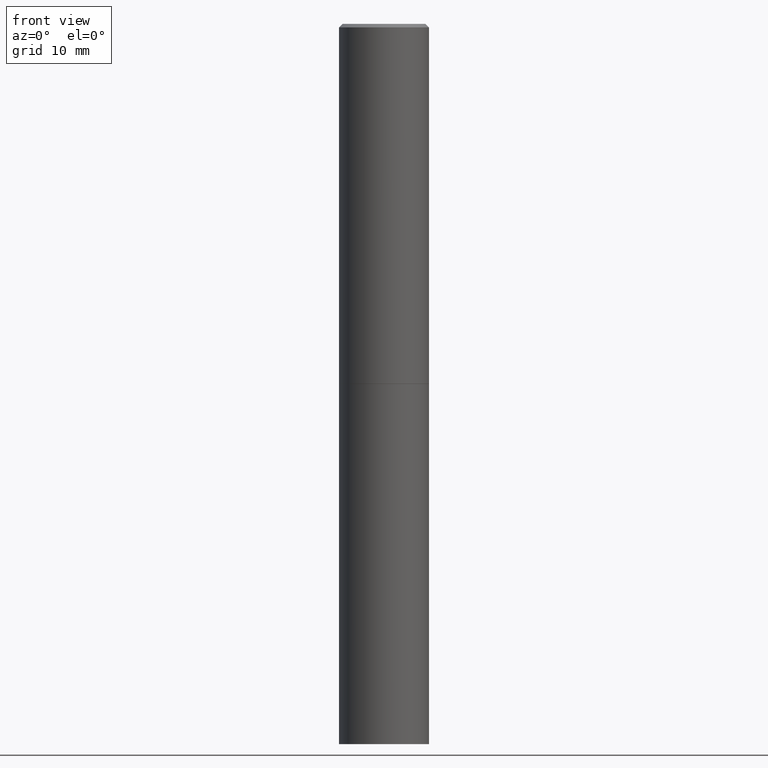
[diagram: clean part render]
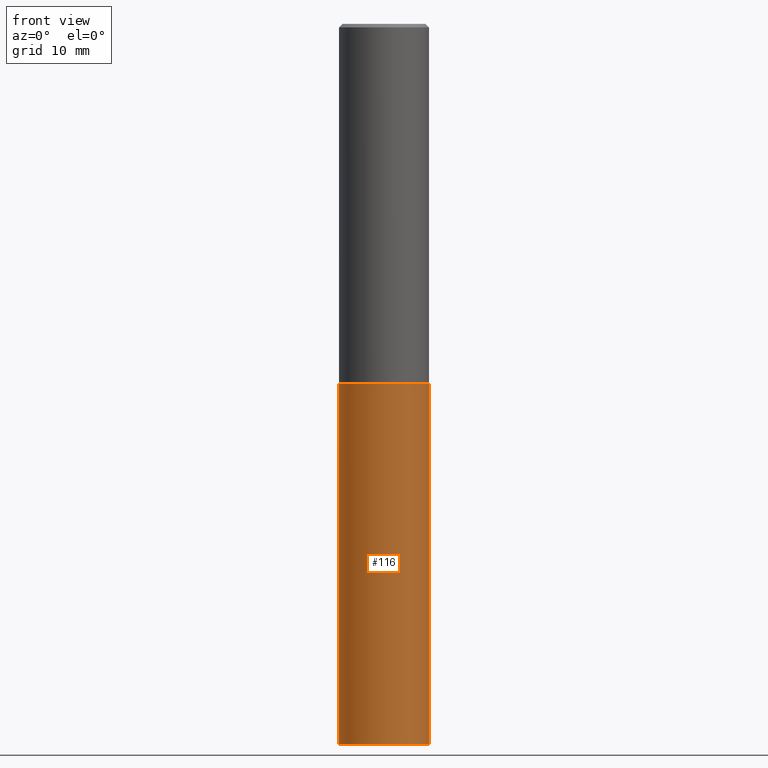
[diagram: same view with one face highlighted and labeled with its STEP entity id]
A machine part, front view. The second image highlights one B-rep face of the part: STEP entity #116.
In plain terms, the highlighted cylindrical surface (partial cylindrical patch) has radius 6.35 mm, axis along (-0, 0, 1).
Its self-contained STEP definition (entity closure, byte-faithful):
#7 = CIRCLE ( 'NONE', #314, 0.2500000000000000000 ) ;
#8 = LINE ( 'NONE', #68, #218 ) ;
#12 = DIRECTION ( 'NONE',  ( -2.445468806185136877E-29, 3.491481338843145188E-15, 1.000000000000000000 ) ) ;
#17 = CARTESIAN_POINT ( 'NONE',  ( 0.2500000000000000000, -1.571166602479415059E-14, -4.000000000000000000 ) ) ;
#18 = ORIENTED_EDGE ( 'NONE', *, *, #231, .F. ) ;
#20 = LINE ( 'NONE', #161, #22 ) ;
#22 = VECTOR ( 'NONE', #12, 39.37007874015748143 ) ;
#30 = CIRCLE ( 'NONE', #159, 0.2500000000000000000 ) ;
#37 = DIRECTION ( 'NONE',  ( 1.000000000000000000, -6.982962677686270655E-15, 0.000000000000000000 ) ) ;
#60 = DIRECTION ( 'NONE',  ( -2.445468806185136597E-29, 3.491481338843145583E-15, 1.000000000000000000 ) ) ;
#68 = CARTESIAN_POINT ( 'NONE',  ( -0.2500000000000000000, 1.776356839400250465E-15, -1.229733772563726445E-29 ) ) ;
#94 = DIRECTION ( 'NONE',  ( -2.445468806185136597E-29, 3.491481338843145583E-15, 1.000000000000000000 ) ) ;
#97 = ORIENTED_EDGE ( 'NONE', *, *, #104, .T. ) ;
#99 = DIRECTION ( 'NONE',  ( 1.000000000000000000, -6.982962677686266711E-15, 0.000000000000000000 ) ) ;
#104 = EDGE_CURVE ( 'NONE', #257, #115, #20, .T. ) ;
#115 = VERTEX_POINT ( 'NONE', #187 ) ;
#116 = ADVANCED_FACE ( 'NONE', ( #313 ), #120, .T. ) ;
#120 = CYLINDRICAL_SURFACE ( 'NONE', #179, 0.2500000000000000000 ) ;
#154 = CARTESIAN_POINT ( 'NONE',  ( 9.781875224740546387E-29, -1.396592535537258233E-14, -4.000000000000000000 ) ) ;
#159 = AXIS2_PLACEMENT_3D ( 'NONE', #154, #358, #37 ) ;
#161 = CARTESIAN_POINT ( 'NONE',  ( 0.2500000000000000000, -1.745740669421566678E-15, 1.219044193948983948E-29 ) ) ;
#169 = EDGE_LOOP ( 'NONE', ( #18, #272, #97, #198 ) ) ;
#175 = EDGE_CURVE ( 'NONE', #217, #257, #30, .T. ) ;
#179 = AXIS2_PLACEMENT_3D ( 'NONE', #264, #60, #346 ) ;
#187 = CARTESIAN_POINT ( 'NONE',  ( 0.2500000000000000000, -8.728703347107857054E-15, -2.000000000000000000 ) ) ;
#198 = ORIENTED_EDGE ( 'NONE', *, *, #215, .F. ) ;
#211 = CARTESIAN_POINT ( 'NONE',  ( -0.2500000000000000000, -8.698087177129185889E-15, -4.000000000000000000 ) ) ;
#215 = EDGE_CURVE ( 'NONE', #301, #115, #7, .T. ) ;
#217 = VERTEX_POINT ( 'NONE', #211 ) ;
#218 = VECTOR ( 'NONE', #297, 39.37007874015748143 ) ;
#231 = EDGE_CURVE ( 'NONE', #217, #301, #8, .T. ) ;
#235 = CARTESIAN_POINT ( 'NONE',  ( 4.890937612370273194E-29, -6.982962677686291165E-15, -2.000000000000000000 ) ) ;
#257 = VERTEX_POINT ( 'NONE', #17 ) ;
#264 = CARTESIAN_POINT ( 'NONE',  ( 0.000000000000000000, 0.000000000000000000, 0.000000000000000000 ) ) ;
#272 = ORIENTED_EDGE ( 'NONE', *, *, #175, .T. ) ;
#294 = CARTESIAN_POINT ( 'NONE',  ( -0.2500000000000000000, -8.698087177129185889E-15, -2.000000000000000000 ) ) ;
#297 = DIRECTION ( 'NONE',  ( -2.445468806185136877E-29, 3.491481338843145188E-15, 1.000000000000000000 ) ) ;
#301 = VERTEX_POINT ( 'NONE', #294 ) ;
#313 = FACE_OUTER_BOUND ( 'NONE', #169, .T. ) ;
#314 = AXIS2_PLACEMENT_3D ( 'NONE', #235, #94, #99 ) ;
#346 = DIRECTION ( 'NONE',  ( 1.000000000000000000, -6.982962677686266711E-15, 4.876176775795935793E-29 ) ) ;
#358 = DIRECTION ( 'NONE',  ( -2.445468806185136597E-29, 3.491481338843145583E-15, 1.000000000000000000 ) ) ;